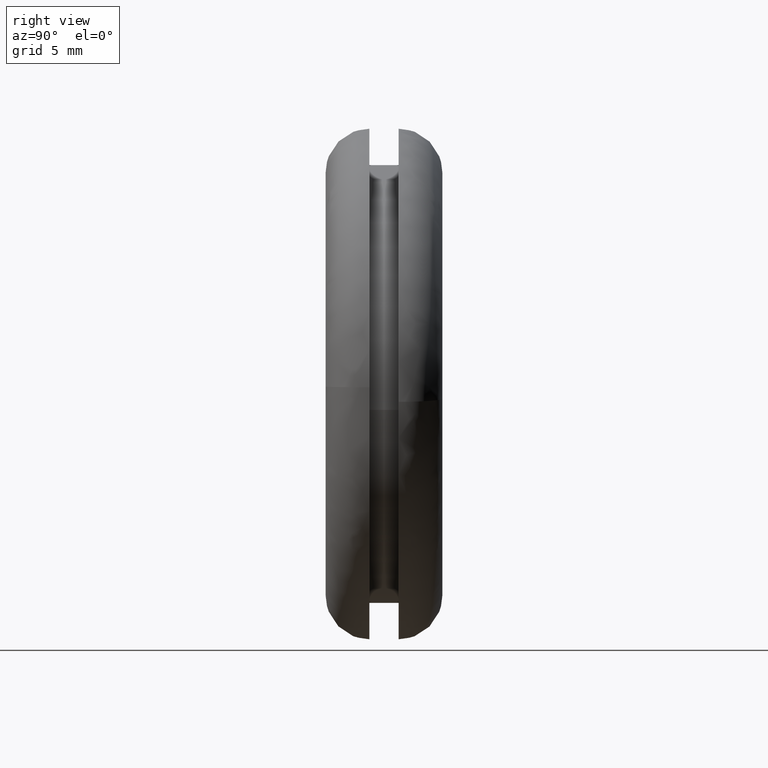
[diagram: clean part render]
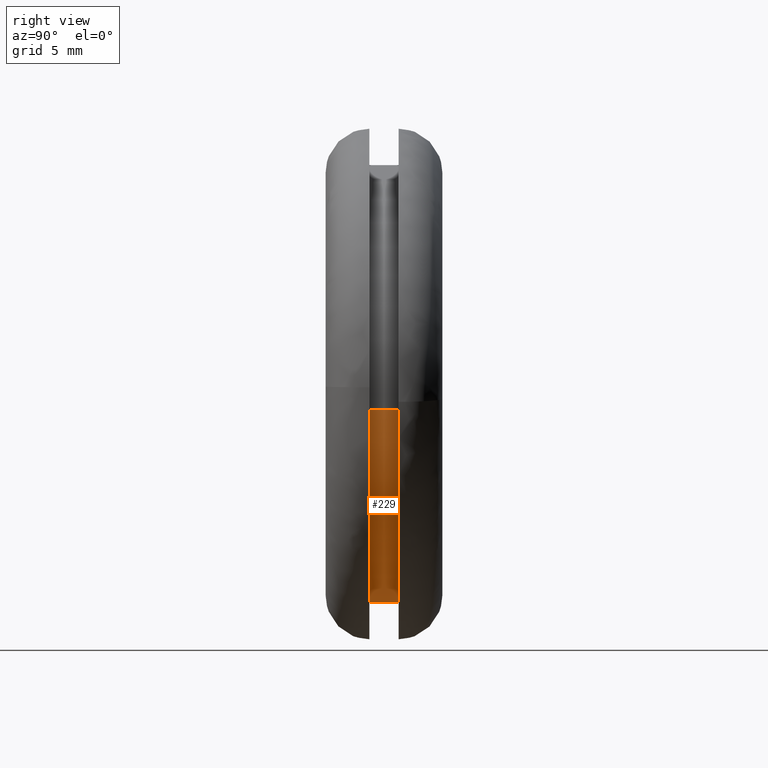
[diagram: same view with one face highlighted and labeled with its STEP entity id]
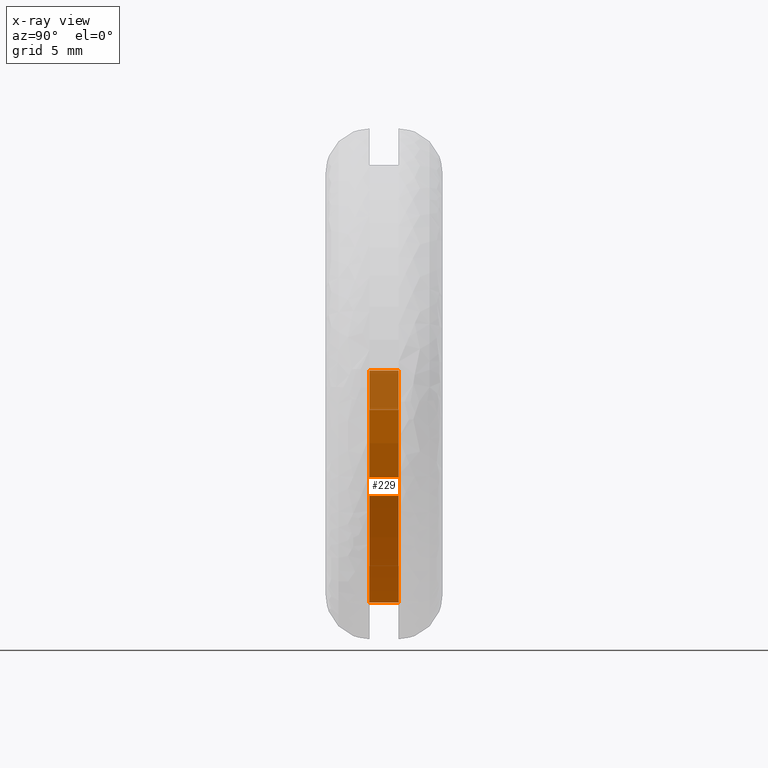
[diagram: x-ray of the same camera — body ghosted, the highlighted face saturated]
A machine part, right view. The second image highlights one B-rep face of the part: STEP entity #229.
The next image is the same camera in x-ray: the body ghosted, the highlighted face saturated — about 17% of this face is hidden behind the body in this view.
In plain terms, the highlighted face is a freeform B-spline surface patch.
Its self-contained STEP definition (entity closure, byte-faithful):
#66=CARTESIAN_POINT('',(14.895143964700610,5.000000000000178,-1.770504524354806));
#67=VERTEX_POINT('',#66);
#85=CARTESIAN_POINT('',(-14.972022653572500,4.999999999999825,0.915717020038759));
#86=VERTEX_POINT('',#85);
#100=CARTESIAN_POINT('',(-14.972022645416461,3.0,0.915717153392057));
#101=VERTEX_POINT('',#100);
#102=CARTESIAN_POINT('',(-14.972022653572500,4.999999999999825,0.915717020038759));
#103=CARTESIAN_POINT('',(-14.972022645416461,3.0,0.915717153392057));
#104=QUASI_UNIFORM_CURVE('',1,(#102,#103),.UNSPECIFIED.,.F.,.U.);
#105=EDGE_CURVE('',#86,#101,#104,.T.);
#122=CARTESIAN_POINT('',(14.895143951811241,3.0,-1.770504632792812));
#123=VERTEX_POINT('',#122);
#139=CARTESIAN_POINT('',(14.895143964700610,5.000000000000178,-1.770504524354806));
#140=CARTESIAN_POINT('',(14.895143951811241,3.0,-1.770504632792812));
#141=QUASI_UNIFORM_CURVE('',1,(#139,#140),.UNSPECIFIED.,.F.,.U.);
#142=EDGE_CURVE('',#67,#123,#141,.T.);
#147=CARTESIAN_POINT('',(-14.972021976328000,5.050000000000001,0.915728093022854));
#148=CARTESIAN_POINT('',(-15.887750069350853,5.050000000000001,-14.056293883305147));
#149=CARTESIAN_POINT('',(-0.915728093022855,5.050000000000001,-14.972021976328000));
#150=CARTESIAN_POINT('',(13.223152362592515,5.050000000000001,-15.836792950987912));
#151=CARTESIAN_POINT('',(14.895142895454988,5.050000000000002,-1.770513519851377));
#152=CARTESIAN_POINT('',(-14.972021976328000,2.948750000000000,0.915728093022854));
#153=CARTESIAN_POINT('',(-15.887750069350853,2.948750000000000,-14.056293883305147));
#154=CARTESIAN_POINT('',(-0.915728093022855,2.948750000000000,-14.972021976328000));
#155=CARTESIAN_POINT('',(13.223152362592515,2.948750000000000,-15.836792950987912));
#156=CARTESIAN_POINT('',(14.895142895454988,2.948750000000000,-1.770513519851377));
#164=(BOUNDED_SURFACE()B_SPLINE_SURFACE(2,1,((#147,#152),(#148,#153),(#149,#154),(#150,#155),(#151,#156)),.UNSPECIFIED.,.F.,.F.,.U.)B_SPLINE_SURFACE_WITH_KNOTS((3,2,3),(2,2),(0.0,24.852813742385699,48.711514935075961),(0.0,2.101250000000002),.UNSPECIFIED.)GEOMETRIC_REPRESENTATION_ITEM()RATIONAL_B_SPLINE_SURFACE(((1.0,1.0),(0.707106781186548,0.707106781186548),(1.0,1.0),(0.718822509939086,0.718822509939086),(0.977505800795127,0.977505800795127)))REPRESENTATION_ITEM('')SURFACE());
#165=CARTESIAN_POINT('',(0.0,5.0,-15.0));
#166=VERTEX_POINT('',#165);
#167=CARTESIAN_POINT('',(0.0,5.0,-15.0));
#168=CARTESIAN_POINT('',(13.322625991727062,5.0,-15.000000000000002));
#169=CARTESIAN_POINT('',(14.895143964700610,5.000000000000178,-1.770504524354806));
#177=(BOUNDED_CURVE()B_SPLINE_CURVE(2,(#167,#168,#169),.UNSPECIFIED.,.F.,.U.)B_SPLINE_CURVE_WITH_KNOTS((3,3),(0.0,0.229562575580339),.UNSPECIFIED.)CURVE()GEOMETRIC_REPRESENTATION_ITEM()RATIONAL_B_SPLINE_CURVE((1.0,0.731050713276673,0.956026954238961))REPRESENTATION_ITEM(''));
#178=EDGE_CURVE('',#166,#67,#177,.T.);
#179=ORIENTED_EDGE('',*,*,#178,.T.);
#180=ORIENTED_EDGE('',*,*,#142,.T.);
#181=CARTESIAN_POINT('',(0.0,3.0,-15.0));
#182=VERTEX_POINT('',#181);
#183=CARTESIAN_POINT('',(0.0,3.0,-15.0));
#184=CARTESIAN_POINT('',(13.322625894054363,3.000000000000000,-14.999999999999998));
#185=CARTESIAN_POINT('',(14.895143951811241,3.000000000000000,-1.770504632792813));
#193=(BOUNDED_CURVE()B_SPLINE_CURVE(2,(#183,#184,#185),.UNSPECIFIED.,.F.,.U.)B_SPLINE_CURVE_WITH_KNOTS((3,3),(0.0,0.229562574349979),.UNSPECIFIED.)CURVE()GEOMETRIC_REPRESENTATION_ITEM()RATIONAL_B_SPLINE_CURVE((1.0,0.731050714718128,0.956026951827404))REPRESENTATION_ITEM(''));
#194=EDGE_CURVE('',#182,#123,#193,.T.);
#195=ORIENTED_EDGE('',*,*,#194,.F.);
#196=CARTESIAN_POINT('',(-14.972022645416464,3.0,0.915717153392057));
#197=CARTESIAN_POINT('',(-14.999999999999996,3.000000000000000,0.458285964326909));
#198=CARTESIAN_POINT('',(-15.0,3.0,-3.061516E-016));
#199=CARTESIAN_POINT('',(-14.999999999999996,3.000000000000000,-14.999999999999996));
#200=CARTESIAN_POINT('',(0.0,3.0,-15.0));
#208=(BOUNDED_CURVE()B_SPLINE_CURVE(2,(#196,#197,#198,#199,#200),.UNSPECIFIED.,.F.,.U.)B_SPLINE_CURVE_WITH_KNOTS((3,2,3),(0.739333088317014,0.750000000000000,1.0),.UNSPECIFIED.)CURVE()GEOMETRIC_REPRESENTATION_ITEM()RATIONAL_B_SPLINE_CURVE((0.976072311876173,0.987502935609486,1.0,0.707106781186547,1.0))REPRESENTATION_ITEM(''));
#209=EDGE_CURVE('',#101,#182,#208,.T.);
#210=ORIENTED_EDGE('',*,*,#209,.F.);
#211=ORIENTED_EDGE('',*,*,#105,.F.);
#212=CARTESIAN_POINT('',(-14.972022653572502,4.999999999999825,0.915717020038759));
#213=CARTESIAN_POINT('',(-14.999999999999996,5.000000000000001,0.458285897463316));
#214=CARTESIAN_POINT('',(-15.0,5.0,-3.061516E-016));
#215=CARTESIAN_POINT('',(-14.999999999999996,4.999999999999999,-14.999999999999996));
#216=CARTESIAN_POINT('',(0.0,5.0,-15.0));
#224=(BOUNDED_CURVE()B_SPLINE_CURVE(2,(#212,#213,#214,#215,#216),.UNSPECIFIED.,.F.,.U.)B_SPLINE_CURVE_WITH_KNOTS((3,2,3),(0.739333089853860,0.750000000000000,1.0),.UNSPECIFIED.)CURVE()GEOMETRIC_REPRESENTATION_ITEM()RATIONAL_B_SPLINE_CURVE((0.976072315169929,0.987502937410012,1.0,0.707106781186547,1.0))REPRESENTATION_ITEM(''));
#225=EDGE_CURVE('',#86,#166,#224,.T.);
#226=ORIENTED_EDGE('',*,*,#225,.T.);
#227=EDGE_LOOP('',(#179,#180,#195,#210,#211,#226));
#228=FACE_OUTER_BOUND('',#227,.T.);
#229=ADVANCED_FACE('',(#228),#164,.T.);